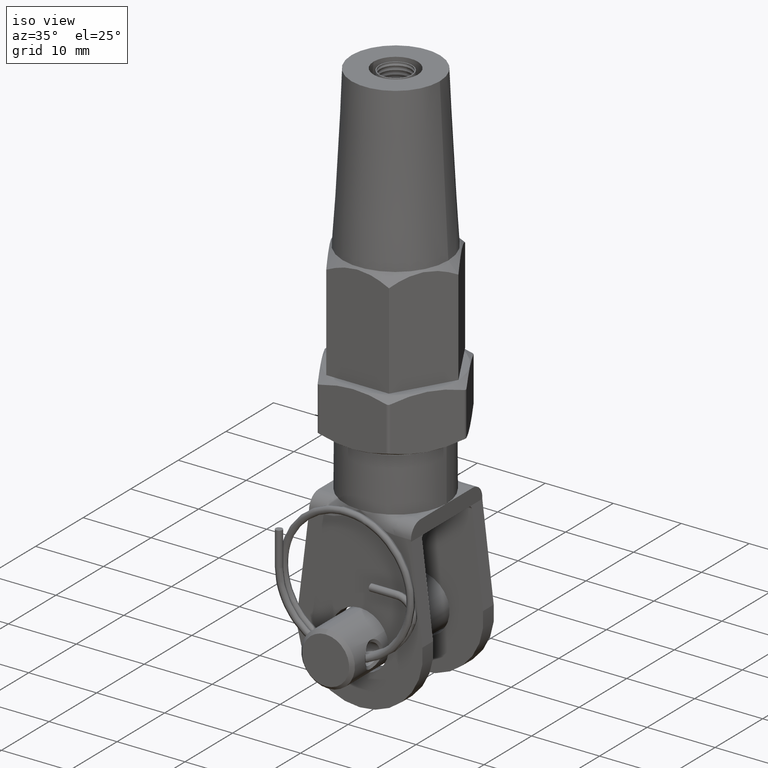
[diagram: clean part render]
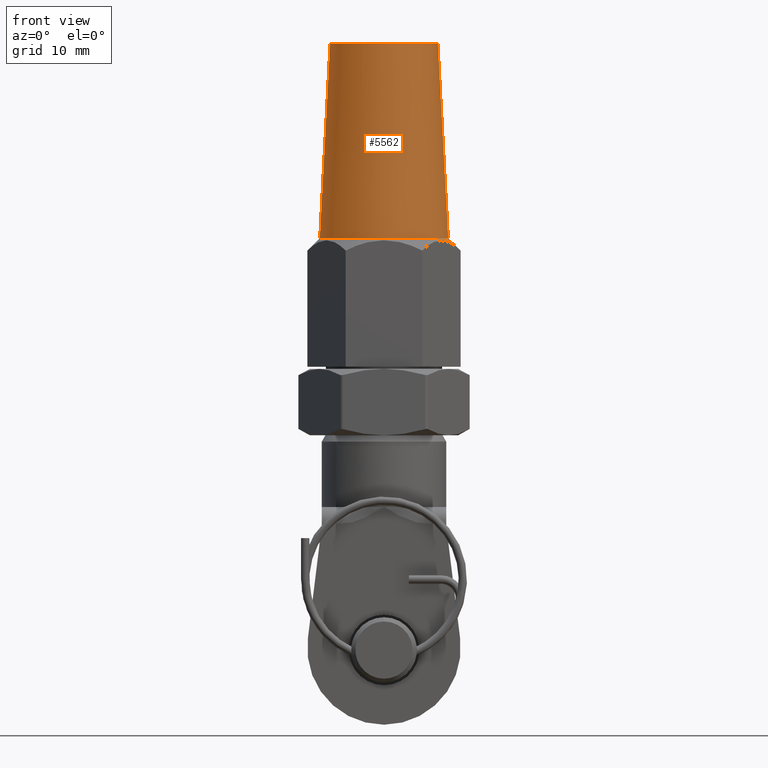
[diagram: tour spotlight — one face highlighted and labeled with its STEP entity id]
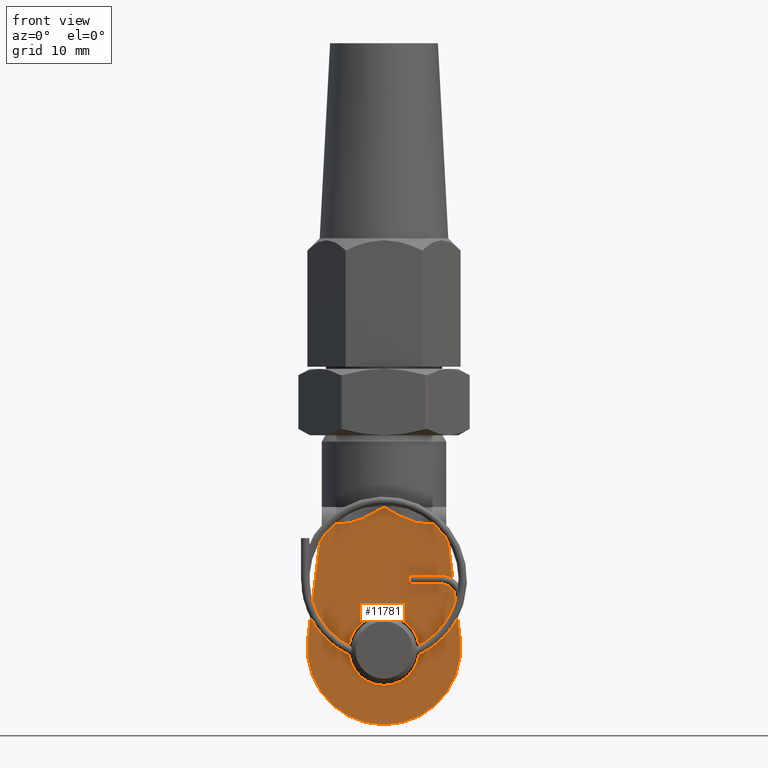
[diagram: tour spotlight — one face highlighted and labeled with its STEP entity id]
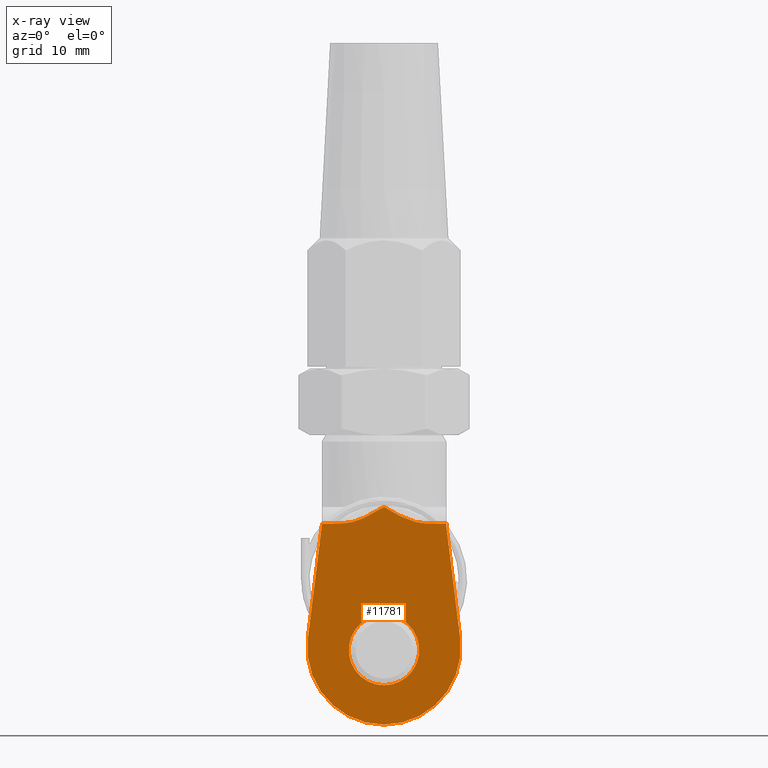
[diagram: x-ray of the same camera — body ghosted, this tour face saturated]
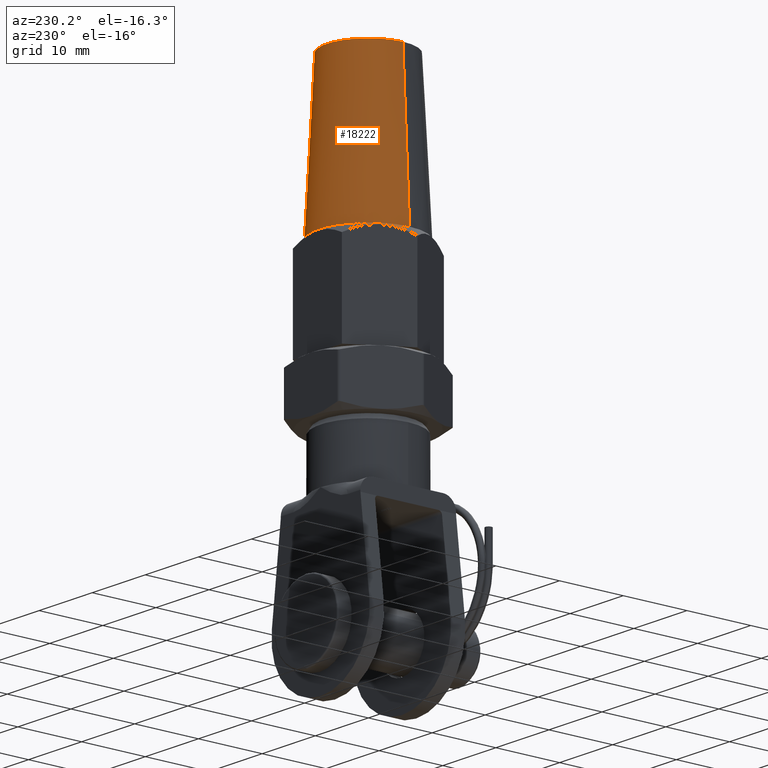
[diagram: tour spotlight — one face highlighted and labeled with its STEP entity id]
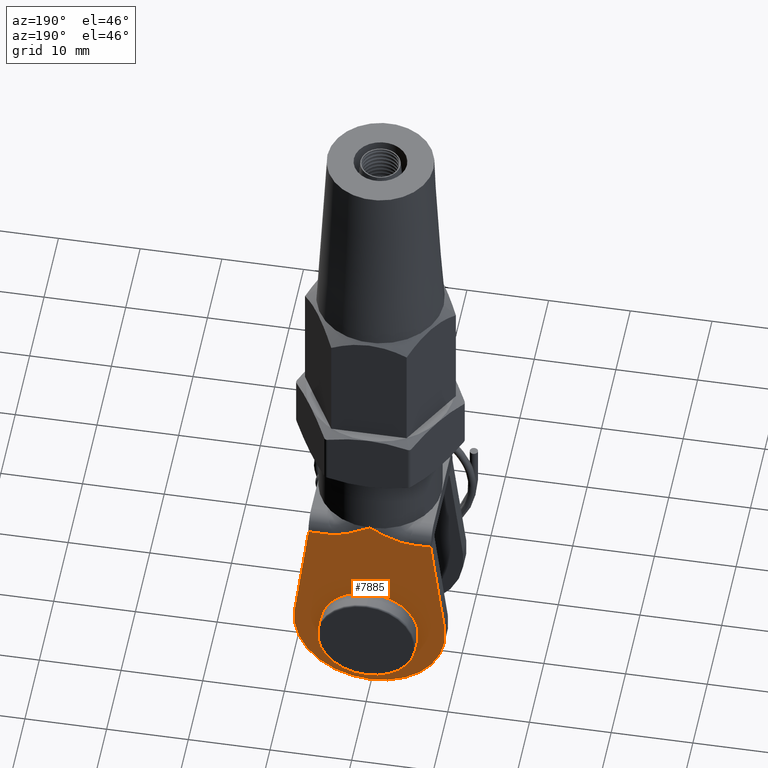
[diagram: tour spotlight — one face highlighted and labeled with its STEP entity id]
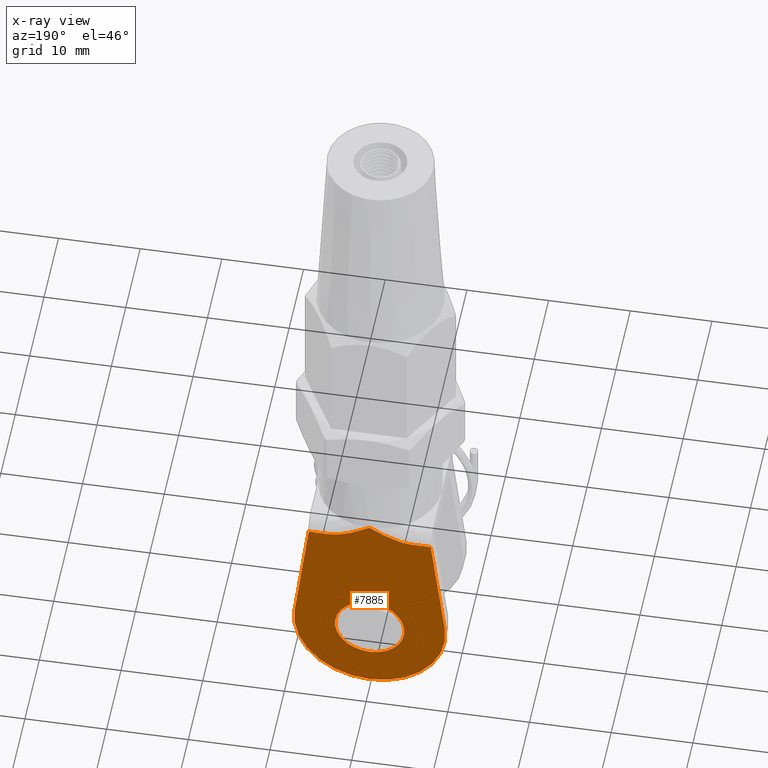
[diagram: x-ray of the same camera — body ghosted, this tour face saturated]
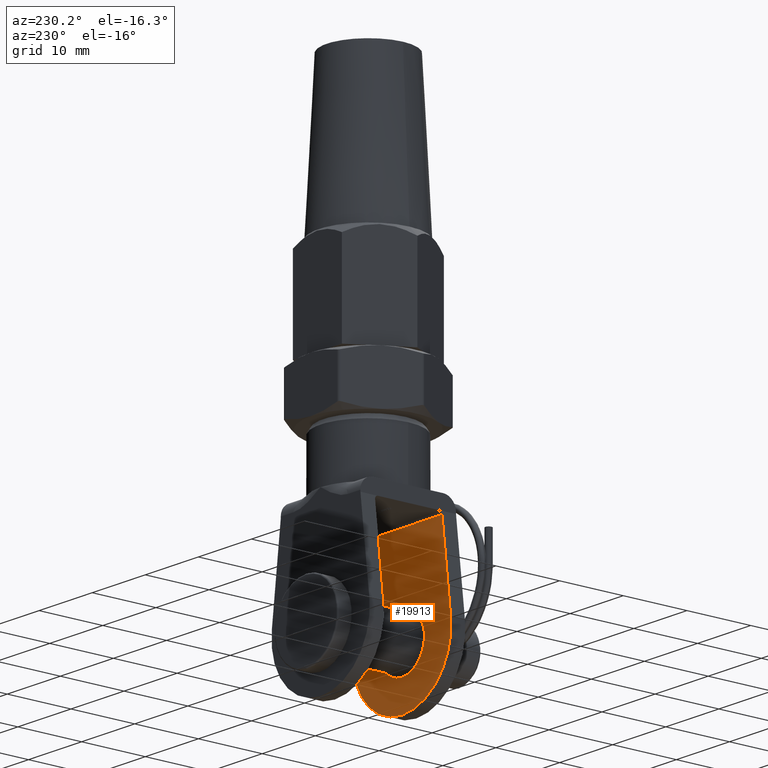
[diagram: tour spotlight — one face highlighted and labeled with its STEP entity id]
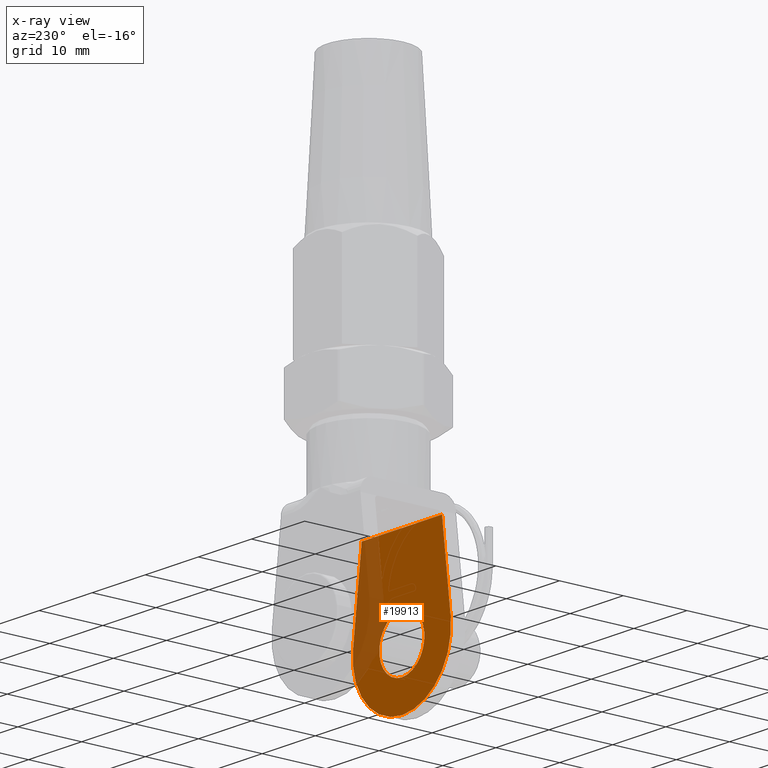
[diagram: x-ray of the same camera — body ghosted, this tour face saturated]
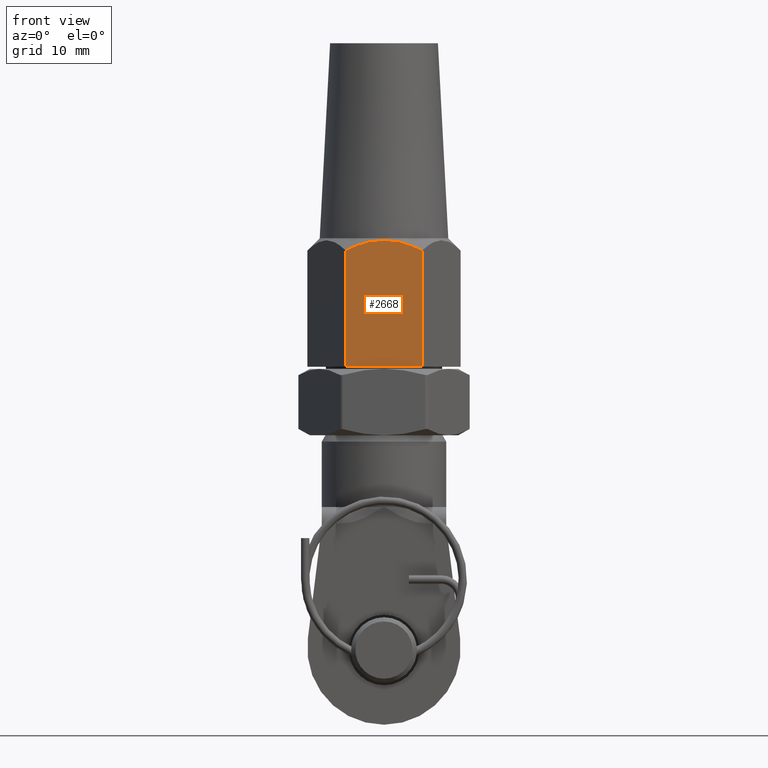
[diagram: tour spotlight — one face highlighted and labeled with its STEP entity id]
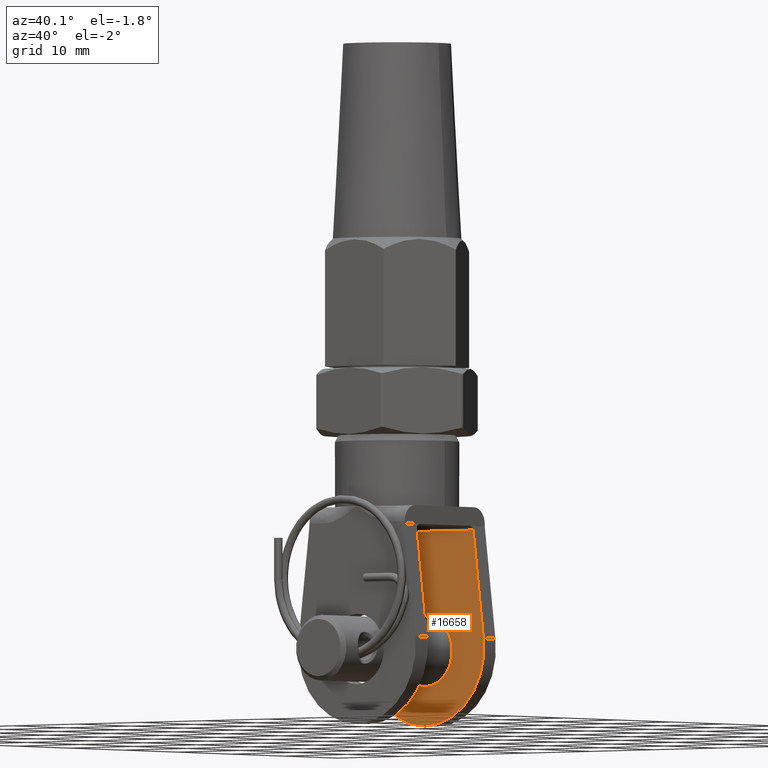
[diagram: tour spotlight — one face highlighted and labeled with its STEP entity id]
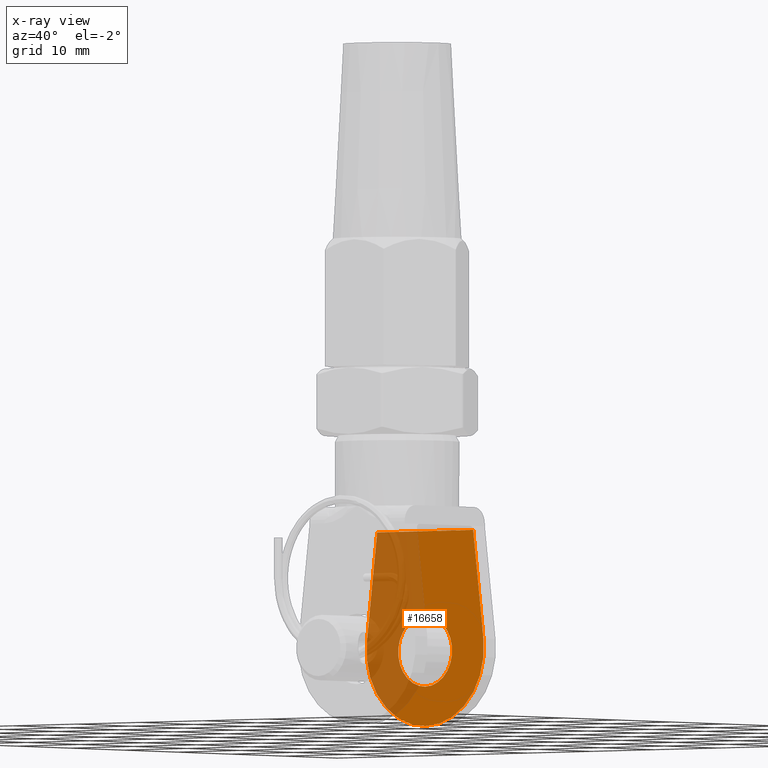
[diagram: x-ray of the same camera — body ghosted, this tour face saturated]
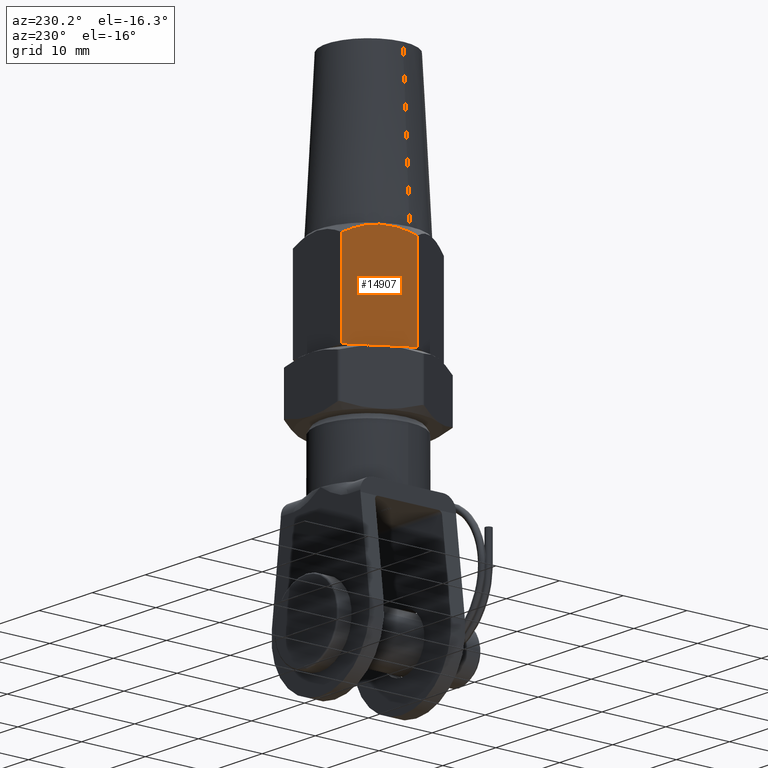
[diagram: tour spotlight — one face highlighted and labeled with its STEP entity id]
A machine part: a face-by-face anatomy tour. The part has 586 B-rep faces; the first image is the clean iso view, then the 8 largest visible faces are spotlighted one at a time (largest first), each with its STEP entity span.

Face 1 — front view, entity #5562. In plain terms, the highlighted conical surface has half-angle 3.045 deg.
Definition (entity closure, byte-faithful):
#176 = CARTESIAN_POINT ( 'NONE',  ( -6.499999999999997300, 0.0000000000000000000, 39.00000000000000000 ) ) ;
#677 = VERTEX_POINT ( 'NONE', #21033 ) ;
#2098 = VERTEX_POINT ( 'NONE', #2561 ) ;
#2561 = CARTESIAN_POINT ( 'NONE',  ( 7.750000000000000000, 9.491012693391987800E-016, 15.49999999999999800 ) ) ;
#3265 = DIRECTION ( 'NONE',  ( -1.198943578309657700E-016, -0.0000000000000000000, -1.000000000000000000 ) ) ;
#4141 = CARTESIAN_POINT ( 'NONE',  ( 3.029592588455082900E-015, 0.0000000000000000000, 39.00000000000000000 ) ) ;
#5562 = ADVANCED_FACE ( 'NONE', ( #15848 ), #20205, .T. ) ;
#6278 = EDGE_CURVE ( 'NONE', #21007, #677, #23113, .T. ) ;
#6662 = VERTEX_POINT ( 'NONE', #23503 ) ;
#7006 = VECTOR ( 'NONE', #13820, 1000.000000000000100 ) ;
#7266 = ORIENTED_EDGE ( 'NONE', *, *, #17715, .T. ) ;
#7704 = DIRECTION ( 'NONE',  ( -1.198943578309657700E-016, -0.0000000000000000000, -1.000000000000000000 ) ) ;
#7905 = VECTOR ( 'NONE', #23760, 1000.000000000000100 ) ;
#8465 = LINE ( 'NONE', #10753, #7905 ) ;
#9465 = CIRCLE ( 'NONE', #18059, 7.750000000000000000 ) ;
#9932 = LINE ( 'NONE', #21158, #7006 ) ;
#10356 = AXIS2_PLACEMENT_3D ( 'NONE', #23558, #3265, #18121 ) ;
#10753 = CARTESIAN_POINT ( 'NONE',  ( 6.500000000000002700, 7.960204194457795500E-016, 39.00000000000000000 ) ) ;
#11617 = DIRECTION ( 'NONE',  ( -1.000000000000000000, 0.0000000000000000000, 0.0000000000000000000 ) ) ;
#11656 = EDGE_CURVE ( 'NONE', #6662, #2098, #9465, .T. ) ;
#11938 = AXIS2_PLACEMENT_3D ( 'NONE', #4141, #7704, #20755 ) ;
#13382 = ORIENTED_EDGE ( 'NONE', *, *, #11656, .F. ) ;
#13820 = DIRECTION ( 'NONE',  ( -0.05311640040396675000, 0.0000000000000000000, -0.9985883275945725000 ) ) ;
#14009 = ORIENTED_EDGE ( 'NONE', *, *, #23080, .F. ) ;
#15848 = FACE_OUTER_BOUND ( 'NONE', #21659, .T. ) ;
#16174 = ORIENTED_EDGE ( 'NONE', *, *, #6278, .T. ) ;
#17715 = EDGE_CURVE ( 'NONE', #677, #2098, #8465, .T. ) ;
#18059 = AXIS2_PLACEMENT_3D ( 'NONE', #22750, #20956, #11617 ) ;
#18121 = DIRECTION ( 'NONE',  ( -1.000000000000000000, 0.0000000000000000000, 0.0000000000000000000 ) ) ;
#20205 = CONICAL_SURFACE ( 'NONE', #10356, 6.500000000000000000, 0.05314140884493547000 ) ;
#20755 = DIRECTION ( 'NONE',  ( -1.000000000000000000, 0.0000000000000000000, 0.0000000000000000000 ) ) ;
#20956 = DIRECTION ( 'NONE',  ( -1.368226964047662500E-017, -0.0000000000000000000, -1.000000000000000000 ) ) ;
#21007 = VERTEX_POINT ( 'NONE', #176 ) ;
#21033 = CARTESIAN_POINT ( 'NONE',  ( 6.500000000000002700, 8.725608443924891100E-016, 39.00000000000000000 ) ) ;
#21158 = CARTESIAN_POINT ( 'NONE',  ( -6.499999999999997300, 0.0000000000000000000, 39.00000000000000000 ) ) ;
#21659 = EDGE_LOOP ( 'NONE', ( #16174, #7266, #13382, #14009 ) ) ;
#22750 = CARTESIAN_POINT ( 'NONE',  ( 2.120751794273876500E-016, 0.0000000000000000000, 15.49999999999999800 ) ) ;
#23080 = EDGE_CURVE ( 'NONE', #21007, #6662, #9932, .T. ) ;
#23113 = CIRCLE ( 'NONE', #11938, 6.500000000000000000 ) ;
#23503 = CARTESIAN_POINT ( 'NONE',  ( -7.750000000000000000, 0.0000000000000000000, 15.49999999999999800 ) ) ;
#23558 = CARTESIAN_POINT ( 'NONE',  ( 3.029592588455082900E-015, 0.0000000000000000000, 39.00000000000000000 ) ) ;
#23760 = DIRECTION ( 'NONE',  ( 0.05311640040396651400, 6.504882973694691800E-018, -0.9985883275945725000 ) ) ;

Face 2 — front view, entity #11781. An x-ray twin of the same camera follows (body ghosted, this face saturated) — the face is partly hidden behind the body. In plain terms, the highlighted planar face has unit normal (0, 1, 0).
Definition (entity closure, byte-faithful):
#774 = FACE_BOUND ( 'NONE', #20301, .T. ) ;
#817 = CARTESIAN_POINT ( 'NONE',  ( -7.500000000000000000, -7.500000000000000000, -9.750000000000000000 ) ) ;
#1074 = DIRECTION ( 'NONE',  ( 0.0000000000000000000, 1.000000000000000000, 0.0000000000000000000 ) ) ;
#1180 = VERTEX_POINT ( 'NONE', #10117 ) ;
#1207 = CARTESIAN_POINT ( 'NONE',  ( 5.204748896376250700E-016, -7.500000000000000000, -29.24999999999999600 ) ) ;
#1218 = CARTESIAN_POINT ( 'NONE',  ( -5.099019513592784500, -7.500000000000000000, -9.750000000000000000 ) ) ;
#1485 = AXIS2_PLACEMENT_3D ( 'NONE', #21576, #1074, #12233 ) ;
#2441 = EDGE_CURVE ( 'NONE', #11786, #16048, #20532, .T. ) ;
#2500 = CARTESIAN_POINT ( 'NONE',  ( 1.594745099172391500, -7.500000000000000000, -8.680283323241806000 ) ) ;
#2799 = CARTESIAN_POINT ( 'NONE',  ( -2.844381765888483600, -7.499999999999998200, -9.273894721944795800 ) ) ;
#3709 = DIRECTION ( 'NONE',  ( -0.0000000000000000000, -0.0000000000000000000, -1.000000000000000000 ) ) ;
#3853 = VECTOR ( 'NONE', #11106, 1000.000000000000000 ) ;
#3920 = EDGE_CURVE ( 'NONE', #21123, #20054, #12341, .T. ) ;
#5035 = ORIENTED_EDGE ( 'NONE', *, *, #10462, .T. ) ;
#5616 = ORIENTED_EDGE ( 'NONE', *, *, #17139, .T. ) ;
#5957 = CARTESIAN_POINT ( 'NONE',  ( 7.500000000000000000, -7.500000000000000000, -10.00000000000000000 ) ) ;
#6095 = CARTESIAN_POINT ( 'NONE',  ( 7.500000000000000000, -7.500000000000000000, -10.00000000000000000 ) ) ;
#6129 = EDGE_CURVE ( 'NONE', #14237, #18928, #12056, .T. ) ;
#6187 = ORIENTED_EDGE ( 'NONE', *, *, #2441, .F. ) ;
#6474 = CARTESIAN_POINT ( 'NONE',  ( 4.173918547497717000, -7.499999999999999100, -9.676164368352271300 ) ) ;
#7403 = EDGE_CURVE ( 'NONE', #11936, #11786, #10001, .T. ) ;
#7478 = CARTESIAN_POINT ( 'NONE',  ( 5.099019513592782700, -7.500000000000000000, -9.750000000000000000 ) ) ;
#8190 = CARTESIAN_POINT ( 'NONE',  ( -9.180365859015916300, -7.500000000000000000, -23.61713518255046300 ) ) ;
#8229 = CARTESIAN_POINT ( 'NONE',  ( 4.631649060212265700, -7.500000000000003600, -9.750000000000001800 ) ) ;
#8270 = DIRECTION ( 'NONE',  ( 0.0000000000000000000, 0.0000000000000000000, -1.000000000000000000 ) ) ;
#8301 = CARTESIAN_POINT ( 'NONE',  ( 2.844460733677555800, -7.499999999999998200, -9.273925671865738400 ) ) ;
#10001 = LINE ( 'NONE', #16768, #23641 ) ;
#10031 = VECTOR ( 'NONE', #23133, 1000.000000000000200 ) ;
#10093 = CARTESIAN_POINT ( 'NONE',  ( -1.581589292000420000, -7.500000000000000900, -8.705437431023932900 ) ) ;
#10117 = CARTESIAN_POINT ( 'NONE',  ( 0.0000000000000000000, -7.500000000000000000, -7.750000000000000000 ) ) ;
#10155 = CARTESIAN_POINT ( 'NONE',  ( 0.0000000000000000000, -7.500000000000000000, -20.74999999999999300 ) ) ;
#10166 = CARTESIAN_POINT ( 'NONE',  ( -3.281924050339796000, -7.499999999999999100, -9.439279125100112500 ) ) ;
#10176 = CARTESIAN_POINT ( 'NONE',  ( 0.1000429423369448200, -7.499999999999998200, -7.810328013337763900 ) ) ;
#10462 = EDGE_CURVE ( 'NONE', #19238, #1180, #23952, .T. ) ;
#10573 = DIRECTION ( 'NONE',  ( -1.000000000000000000, 0.0000000000000000000, -0.0000000000000000000 ) ) ;
#10725 = ORIENTED_EDGE ( 'NONE', *, *, #15120, .T. ) ;
#11106 = DIRECTION ( 'NONE',  ( -0.0000000000000000000, -0.0000000000000000000, -1.000000000000000000 ) ) ;
#11411 = B_SPLINE_CURVE_WITH_KNOTS ( 'NONE', 3,
 ( #13885, #21295, #10093, #2799, #10166, #23165, #13727, #21519 ),
 .UNSPECIFIED., .F., .F.,
 ( 4, 2, 2, 4 ),
 ( -1.483239697502911500E-005, 0.002750793772105006300, 0.004133606856645022000, 0.005516419941185038600 ),
 .UNSPECIFIED. ) ;
#11675 = DIRECTION ( 'NONE',  ( 0.1224718721567065500, 0.0000000000000000000, -0.9924719847584773100 ) ) ;
#11699 = CIRCLE ( 'NONE', #1485, 4.250000000000000000 ) ;
#11781 = ADVANCED_FACE ( 'NONE', ( #774, #20180 ), #16986, .F. ) ;
#11786 = VERTEX_POINT ( 'NONE', #5957 ) ;
#11803 = ORIENTED_EDGE ( 'NONE', *, *, #21126, .T. ) ;
#11936 = VERTEX_POINT ( 'NONE', #19486 ) ;
#11968 = CARTESIAN_POINT ( 'NONE',  ( 0.7928025339162136900, -7.500000000000000000, -8.224167507945885800 ) ) ;
#12056 = CIRCLE ( 'NONE', #23018, 4.250000000000000000 ) ;
#12233 = DIRECTION ( 'NONE',  ( 0.0000000000000000000, 0.0000000000000000000, 1.000000000000000000 ) ) ;
#12341 = LINE ( 'NONE', #8190, #10031 ) ;
#12512 = CARTESIAN_POINT ( 'NONE',  ( 0.0000000000000000000, -7.500000000000000000, -9.750000000000000000 ) ) ;
#12638 = DIRECTION ( 'NONE',  ( 0.0000000000000000000, 0.0000000000000000000, 1.000000000000000000 ) ) ;
#12813 = VECTOR ( 'NONE', #10573, 1000.000000000000000 ) ;
#12826 = ORIENTED_EDGE ( 'NONE', *, *, #23521, .T. ) ;
#13265 = CARTESIAN_POINT ( 'NONE',  ( -9.180365859015916300, -7.500000000000000000, -23.61713518255046300 ) ) ;
#13312 = AXIS2_PLACEMENT_3D ( 'NONE', #23578, #23827, #23743 ) ;
#13388 = CARTESIAN_POINT ( 'NONE',  ( 1.925929944387235900E-031, -7.500000000000000000, -24.74999999999999300 ) ) ;
#13727 = CARTESIAN_POINT ( 'NONE',  ( -4.631631951802542200, -7.499999999999999100, -9.750000000000000000 ) ) ;
#13867 = DIRECTION ( 'NONE',  ( 0.0000000000000000000, 1.000000000000000000, 0.0000000000000000000 ) ) ;
#13885 = CARTESIAN_POINT ( 'NONE',  ( 0.0000000000000000000, -7.500000000000000000, -7.750000000000000000 ) ) ;
#14060 = CARTESIAN_POINT ( 'NONE',  ( -7.500000000000000000, -7.500000000000000000, -10.00000000000000000 ) ) ;
#14136 = VERTEX_POINT ( 'NONE', #817 ) ;
#14237 = VERTEX_POINT ( 'NONE', #1207 ) ;
#14749 = CARTESIAN_POINT ( 'NONE',  ( -7.500000000000000000, -7.500000000000000000, -7.750000000000000000 ) ) ;
#15120 = EDGE_CURVE ( 'NONE', #1180, #17581, #11411, .T. ) ;
#15378 = CARTESIAN_POINT ( 'NONE',  ( 0.0000000000000000000, -7.500000000000000000, -7.750000000000000000 ) ) ;
#15421 = EDGE_CURVE ( 'NONE', #18928, #14237, #11699, .T. ) ;
#15438 = LINE ( 'NONE', #12512, #12813 ) ;
#15459 = CARTESIAN_POINT ( 'NONE',  ( 0.1979252277346972800, -7.500000000000000000, -7.869353315289058200 ) ) ;
#15697 = CARTESIAN_POINT ( 'NONE',  ( 0.4949784082190743000, -7.500000000000000900, -8.047506053340539400 ) ) ;
#16048 = VERTEX_POINT ( 'NONE', #22124 ) ;
#16768 = CARTESIAN_POINT ( 'NONE',  ( 7.500000000000000000, -7.500000000000000000, -7.750000000000000000 ) ) ;
#16920 = LINE ( 'NONE', #14749, #3853 ) ;
#16986 = PLANE ( 'NONE',  #19617 ) ;
#17139 = EDGE_CURVE ( 'NONE', #14136, #20054, #16920, .T. ) ;
#17581 = VERTEX_POINT ( 'NONE', #1218 ) ;
#18607 = EDGE_LOOP ( 'NONE', ( #23655, #12826, #5035, #10725, #11803, #5616, #20415, #23057, #6187 ) ) ;
#18928 = VERTEX_POINT ( 'NONE', #10155 ) ;
#19201 = CARTESIAN_POINT ( 'NONE',  ( 2.002626043966609700, -7.499999999999999100, -8.894975475922905200 ) ) ;
#19238 = VERTEX_POINT ( 'NONE', #7478 ) ;
#19486 = CARTESIAN_POINT ( 'NONE',  ( 7.500000000000000000, -7.500000000000000000, -9.750000000000000000 ) ) ;
#19617 = AXIS2_PLACEMENT_3D ( 'NONE', #13388, #13867, #8270 ) ;
#19716 = LINE ( 'NONE', #22710, #20589 ) ;
#20031 = CARTESIAN_POINT ( 'NONE',  ( 0.0000000000000000000, -7.500000000000000000, -24.99999999999999300 ) ) ;
#20054 = VERTEX_POINT ( 'NONE', #14060 ) ;
#20180 = FACE_OUTER_BOUND ( 'NONE', #18607, .T. ) ;
#20301 = EDGE_LOOP ( 'NONE', ( #23513, #22684 ) ) ;
#20415 = ORIENTED_EDGE ( 'NONE', *, *, #3920, .F. ) ;
#20532 = LINE ( 'NONE', #6095, #23732 ) ;
#20589 = VECTOR ( 'NONE', #22630, 1000.000000000000000 ) ;
#21123 = VERTEX_POINT ( 'NONE', #13265 ) ;
#21126 = EDGE_CURVE ( 'NONE', #17581, #14136, #19716, .T. ) ;
#21230 = CARTESIAN_POINT ( 'NONE',  ( 3.281988646966437900, -7.499999999999999100, -9.439299869324139900 ) ) ;
#21295 = CARTESIAN_POINT ( 'NONE',  ( -0.7894474454385411700, -7.500000000000001800, -8.226053531667204800 ) ) ;
#21309 = CARTESIAN_POINT ( 'NONE',  ( 0.3958965343504308200, -7.500000000000000900, -7.988245890614972000 ) ) ;
#21448 = CIRCLE ( 'NONE', #13312, 9.250000000000001800 ) ;
#21519 = CARTESIAN_POINT ( 'NONE',  ( -5.099019513592784500, -7.500000000000000000, -9.750000000000000000 ) ) ;
#21576 = CARTESIAN_POINT ( 'NONE',  ( 0.0000000000000000000, -7.500000000000000000, -24.99999999999999300 ) ) ;
#21600 = EDGE_CURVE ( 'NONE', #16048, #21123, #21448, .T. ) ;
#21988 = DIRECTION ( 'NONE',  ( 0.0000000000000000000, 1.000000000000000000, 0.0000000000000000000 ) ) ;
#22124 = CARTESIAN_POINT ( 'NONE',  ( 9.180365859015916300, -7.500000000000000000, -23.61713518255046300 ) ) ;
#22630 = DIRECTION ( 'NONE',  ( -1.000000000000000000, 0.0000000000000000000, -0.0000000000000000000 ) ) ;
#22684 = ORIENTED_EDGE ( 'NONE', *, *, #6129, .T. ) ;
#22710 = CARTESIAN_POINT ( 'NONE',  ( -7.500000000000000000, -7.500000000000000000, -9.750000000000000000 ) ) ;
#22863 = CARTESIAN_POINT ( 'NONE',  ( 5.099019513592782700, -7.500000000000000000, -9.750000000000000000 ) ) ;
#23018 = AXIS2_PLACEMENT_3D ( 'NONE', #20031, #21988, #12638 ) ;
#23057 = ORIENTED_EDGE ( 'NONE', *, *, #21600, .F. ) ;
#23133 = DIRECTION ( 'NONE',  ( 0.1224718721567065500, 0.0000000000000000000, 0.9924719847584773100 ) ) ;
#23165 = CARTESIAN_POINT ( 'NONE',  ( -4.173885195120201200, -7.499999999999999100, -9.676159100449828200 ) ) ;
#23176 = CARTESIAN_POINT ( 'NONE',  ( 0.9921217126481075600, -7.499999999999999100, -8.340452817098990200 ) ) ;
#23513 = ORIENTED_EDGE ( 'NONE', *, *, #15421, .T. ) ;
#23521 = EDGE_CURVE ( 'NONE', #11936, #19238, #15438, .T. ) ;
#23578 = CARTESIAN_POINT ( 'NONE',  ( 1.925929944387235900E-031, -7.500000000000000000, -24.74999999999999300 ) ) ;
#23641 = VECTOR ( 'NONE', #3709, 1000.000000000000000 ) ;
#23655 = ORIENTED_EDGE ( 'NONE', *, *, #7403, .F. ) ;
#23732 = VECTOR ( 'NONE', #11675, 1000.000000000000200 ) ;
#23743 = DIRECTION ( 'NONE',  ( 0.0000000000000000000, 0.0000000000000000000, -1.000000000000000000 ) ) ;
#23827 = DIRECTION ( 'NONE',  ( -0.0000000000000000000, 1.000000000000000000, -0.0000000000000000000 ) ) ;
#23952 = B_SPLINE_CURVE_WITH_KNOTS ( 'NONE', 3,
 ( #22863, #8229, #6474, #21230, #8301, #19201, #2500, #23176, #11968, #15697, #21309, #15459, #10176, #15378 ),
 .UNSPECIFIED., .F., .F.,
 ( 4, 2, 2, 2, 2, 2, 4 ),
 ( 0.0000000000000000000, 0.001401898915285598300, 0.002803797830571195400, 0.004205696745856792200, 0.004906646203499591900, 0.005257120932320991800, 0.005607595661142390800 ),
 .UNSPECIFIED. ) ;

Face 3 — auxiliary view, entity #18222. In plain terms, the highlighted conical surface has half-angle 3.045 deg.
Definition (entity closure, byte-faithful):
#176 = CARTESIAN_POINT ( 'NONE',  ( -6.499999999999997300, 0.0000000000000000000, 39.00000000000000000 ) ) ;
#677 = VERTEX_POINT ( 'NONE', #21033 ) ;
#890 = DIRECTION ( 'NONE',  ( -1.198943578309657700E-016, -0.0000000000000000000, -1.000000000000000000 ) ) ;
#2098 = VERTEX_POINT ( 'NONE', #2561 ) ;
#2561 = CARTESIAN_POINT ( 'NONE',  ( 7.750000000000000000, 9.491012693391987800E-016, 15.49999999999999800 ) ) ;
#3320 = DIRECTION ( 'NONE',  ( -1.198943578309657700E-016, -0.0000000000000000000, -1.000000000000000000 ) ) ;
#4241 = EDGE_CURVE ( 'NONE', #2098, #6662, #6865, .T. ) ;
#4603 = EDGE_LOOP ( 'NONE', ( #9618, #10871, #12526, #5177 ) ) ;
#5177 = ORIENTED_EDGE ( 'NONE', *, *, #4241, .F. ) ;
#6662 = VERTEX_POINT ( 'NONE', #23503 ) ;
#6865 = CIRCLE ( 'NONE', #18909, 7.750000000000000000 ) ;
#7006 = VECTOR ( 'NONE', #13820, 1000.000000000000100 ) ;
#7905 = VECTOR ( 'NONE', #23760, 1000.000000000000100 ) ;
#8462 = CIRCLE ( 'NONE', #11814, 6.500000000000000000 ) ;
#8465 = LINE ( 'NONE', #10753, #7905 ) ;
#8917 = DIRECTION ( 'NONE',  ( -1.000000000000000000, 0.0000000000000000000, 0.0000000000000000000 ) ) ;
#9618 = ORIENTED_EDGE ( 'NONE', *, *, #17715, .F. ) ;
#9932 = LINE ( 'NONE', #21158, #7006 ) ;
#10753 = CARTESIAN_POINT ( 'NONE',  ( 6.500000000000002700, 7.960204194457795500E-016, 39.00000000000000000 ) ) ;
#10871 = ORIENTED_EDGE ( 'NONE', *, *, #23077, .T. ) ;
#11814 = AXIS2_PLACEMENT_3D ( 'NONE', #20999, #890, #22787 ) ;
#12126 = DIRECTION ( 'NONE',  ( -1.368226964047662500E-017, -0.0000000000000000000, -1.000000000000000000 ) ) ;
#12526 = ORIENTED_EDGE ( 'NONE', *, *, #23080, .T. ) ;
#13820 = DIRECTION ( 'NONE',  ( -0.05311640040396675000, 0.0000000000000000000, -0.9985883275945725000 ) ) ;
#16292 = CONICAL_SURFACE ( 'NONE', #20006, 6.500000000000000000, 0.05314140884493547000 ) ;
#16895 = FACE_OUTER_BOUND ( 'NONE', #4603, .T. ) ;
#17715 = EDGE_CURVE ( 'NONE', #677, #2098, #8465, .T. ) ;
#18222 = ADVANCED_FACE ( 'NONE', ( #16895 ), #16292, .T. ) ;
#18909 = AXIS2_PLACEMENT_3D ( 'NONE', #23333, #12126, #23405 ) ;
#20006 = AXIS2_PLACEMENT_3D ( 'NONE', #21829, #3320, #8917 ) ;
#20999 = CARTESIAN_POINT ( 'NONE',  ( 3.029592588455082900E-015, 0.0000000000000000000, 39.00000000000000000 ) ) ;
#21007 = VERTEX_POINT ( 'NONE', #176 ) ;
#21033 = CARTESIAN_POINT ( 'NONE',  ( 6.500000000000002700, 8.725608443924891100E-016, 39.00000000000000000 ) ) ;
#21158 = CARTESIAN_POINT ( 'NONE',  ( -6.499999999999997300, 0.0000000000000000000, 39.00000000000000000 ) ) ;
#21829 = CARTESIAN_POINT ( 'NONE',  ( 3.029592588455082900E-015, 0.0000000000000000000, 39.00000000000000000 ) ) ;
#22787 = DIRECTION ( 'NONE',  ( -1.000000000000000000, 0.0000000000000000000, 0.0000000000000000000 ) ) ;
#23077 = EDGE_CURVE ( 'NONE', #677, #21007, #8462, .T. ) ;
#23080 = EDGE_CURVE ( 'NONE', #21007, #6662, #9932, .T. ) ;
#23333 = CARTESIAN_POINT ( 'NONE',  ( 2.120751794273876500E-016, 0.0000000000000000000, 15.49999999999999800 ) ) ;
#23405 = DIRECTION ( 'NONE',  ( -1.000000000000000000, 0.0000000000000000000, 0.0000000000000000000 ) ) ;
#23503 = CARTESIAN_POINT ( 'NONE',  ( -7.750000000000000000, 0.0000000000000000000, 15.49999999999999800 ) ) ;
#23760 = DIRECTION ( 'NONE',  ( 0.05311640040396651400, 6.504882973694691800E-018, -0.9985883275945725000 ) ) ;

Face 4 — auxiliary view, entity #7885. An x-ray twin of the same camera follows (body ghosted, this face saturated) — the face is partly hidden behind the body. In plain terms, the highlighted planar face has unit normal (0, -1, 0).
Definition (entity closure, byte-faithful):
#85 = ORIENTED_EDGE ( 'NONE', *, *, #3328, .F. ) ;
#211 = DIRECTION ( 'NONE',  ( 0.0000000000000000000, -1.000000000000000000, 0.0000000000000000000 ) ) ;
#608 = DIRECTION ( 'NONE',  ( 0.0000000000000000000, 1.000000000000000000, 0.0000000000000000000 ) ) ;
#832 = VERTEX_POINT ( 'NONE', #7302 ) ;
#1129 = DIRECTION ( 'NONE',  ( -0.0000000000000000000, -0.0000000000000000000, -1.000000000000000000 ) ) ;
#1628 = EDGE_CURVE ( 'NONE', #14308, #15328, #17076, .T. ) ;
#1908 = EDGE_CURVE ( 'NONE', #20669, #20191, #8318, .T. ) ;
#2435 = CARTESIAN_POINT ( 'NONE',  ( -0.7928025339162146900, 7.500000000000000900, -8.224167507945885800 ) ) ;
#2472 = VECTOR ( 'NONE', #12699, 1000.000000000000000 ) ;
#2644 = CARTESIAN_POINT ( 'NONE',  ( 5.204748896376250700E-016, 7.500000000000000000, -29.24999999999999600 ) ) ;
#2712 = EDGE_LOOP ( 'NONE', ( #14281, #17993, #4265, #21546, #3267, #5326, #11188, #14435, #17341, #17238 ) ) ;
#2818 = CARTESIAN_POINT ( 'NONE',  ( 5.099019513592785400, 7.500000000000000000, -9.750000000000000000 ) ) ;
#3267 = ORIENTED_EDGE ( 'NONE', *, *, #23854, .T. ) ;
#3328 = EDGE_CURVE ( 'NONE', #23652, #15129, #7458, .T. ) ;
#3930 = PLANE ( 'NONE',  #13349 ) ;
#4265 = ORIENTED_EDGE ( 'NONE', *, *, #1628, .T. ) ;
#4289 = CARTESIAN_POINT ( 'NONE',  ( -3.281988646966439700, 7.500000000000000900, -9.439299869324143400 ) ) ;
#4466 = LINE ( 'NONE', #6763, #5908 ) ;
#4618 = VERTEX_POINT ( 'NONE', #12995 ) ;
#4803 = VERTEX_POINT ( 'NONE', #5024 ) ;
#4912 = CARTESIAN_POINT ( 'NONE',  ( 1.581589292000420900, 7.500000000000000900, -8.705437431023932900 ) ) ;
#5024 = CARTESIAN_POINT ( 'NONE',  ( 0.0000000000000000000, 7.500000000000000000, -7.750000000000000000 ) ) ;
#5050 = LINE ( 'NONE', #19930, #2472 ) ;
#5326 = ORIENTED_EDGE ( 'NONE', *, *, #19129, .T. ) ;
#5452 = VECTOR ( 'NONE', #19414, 1000.000000000000000 ) ;
#5615 = DIRECTION ( 'NONE',  ( 0.0000000000000000000, 0.0000000000000000000, -1.000000000000000000 ) ) ;
#5886 = AXIS2_PLACEMENT_3D ( 'NONE', #16716, #16801, #5615 ) ;
#5908 = VECTOR ( 'NONE', #21608, 1000.000000000000200 ) ;
#6251 = CARTESIAN_POINT ( 'NONE',  ( -0.1979252277346972300, 7.499999999999999100, -7.869353315289056500 ) ) ;
#6482 = CARTESIAN_POINT ( 'NONE',  ( 2.844381765888485300, 7.499999999999998200, -9.273894721944795800 ) ) ;
#6573 = CARTESIAN_POINT ( 'NONE',  ( 0.0000000000000000000, 7.500000000000000000, -9.750000000000000000 ) ) ;
#6763 = CARTESIAN_POINT ( 'NONE',  ( 7.500000000000000000, 7.500000000000000000, -10.00000000000000000 ) ) ;
#6936 = DIRECTION ( 'NONE',  ( 0.1224718721567065500, 0.0000000000000000000, 0.9924719847584773100 ) ) ;
#7091 = CARTESIAN_POINT ( 'NONE',  ( -7.500000000000000000, 7.500000000000000000, -10.00000000000000000 ) ) ;
#7302 = CARTESIAN_POINT ( 'NONE',  ( -7.500000000000000000, 7.500000000000000000, -9.750000000000000000 ) ) ;
#7368 = EDGE_CURVE ( 'NONE', #23211, #14308, #5050, .T. ) ;
#7458 = CIRCLE ( 'NONE', #20935, 4.250000000000000000 ) ;
#7640 = CARTESIAN_POINT ( 'NONE',  ( 0.0000000000000000000, 7.500000000000000000, -24.99999999999999300 ) ) ;
#7659 = DIRECTION ( 'NONE',  ( 0.0000000000000000000, -0.0000000000000000000, -1.000000000000000000 ) ) ;
#7885 = ADVANCED_FACE ( 'NONE', ( #20715, #15774 ), #3930, .F. ) ;
#7937 = CARTESIAN_POINT ( 'NONE',  ( -2.002626043966610600, 7.500000000000000000, -8.894975475922901600 ) ) ;
#8017 = CARTESIAN_POINT ( 'NONE',  ( -0.4949784082190749600, 7.500000000000000900, -8.047506053340535800 ) ) ;
#8060 = CIRCLE ( 'NONE', #12285, 4.250000000000000000 ) ;
#8148 = CARTESIAN_POINT ( 'NONE',  ( 0.0000000000000000000, 7.500000000000000000, -20.74999999999999300 ) ) ;
#8318 = LINE ( 'NONE', #21705, #17360 ) ;
#8377 = AXIS2_PLACEMENT_3D ( 'NONE', #12736, #23874, #10714 ) ;
#8724 = CIRCLE ( 'NONE', #5886, 9.250000000000001800 ) ;
#9436 = CARTESIAN_POINT ( 'NONE',  ( -5.099019513592783600, 7.500000000000000000, -9.750000000000000000 ) ) ;
#9892 = EDGE_CURVE ( 'NONE', #15129, #23652, #8060, .T. ) ;
#10336 = CARTESIAN_POINT ( 'NONE',  ( 5.099019513592785400, 7.500000000000000000, -9.750000000000000000 ) ) ;
#10409 = VERTEX_POINT ( 'NONE', #18961 ) ;
#10714 = DIRECTION ( 'NONE',  ( 0.0000000000000000000, 0.0000000000000000000, -1.000000000000000000 ) ) ;
#11188 = ORIENTED_EDGE ( 'NONE', *, *, #1908, .T. ) ;
#11560 = VERTEX_POINT ( 'NONE', #9436 ) ;
#12209 = CARTESIAN_POINT ( 'NONE',  ( 7.500000000000000000, 7.500000000000000000, -9.750000000000000000 ) ) ;
#12285 = AXIS2_PLACEMENT_3D ( 'NONE', #7640, #20611, #16973 ) ;
#12287 = CARTESIAN_POINT ( 'NONE',  ( -7.500000000000000000, 7.500000000000000000, -7.750000000000000000 ) ) ;
#12699 = DIRECTION ( 'NONE',  ( 1.000000000000000000, -0.0000000000000000000, -0.0000000000000000000 ) ) ;
#12736 = CARTESIAN_POINT ( 'NONE',  ( 1.925929944387235900E-031, 7.500000000000000000, -24.74999999999999300 ) ) ;
#12995 = CARTESIAN_POINT ( 'NONE',  ( 9.180365859015916300, 7.500000000000000000, -23.61713518255046300 ) ) ;
#13349 = AXIS2_PLACEMENT_3D ( 'NONE', #18773, #211, #7659 ) ;
#13458 = B_SPLINE_CURVE_WITH_KNOTS ( 'NONE', 3,
 ( #13589, #15550, #23035, #4289, #17352, #7937, #19134, #13505, #2435, #8017, #21004, #6251, #19214, #17439 ),
 .UNSPECIFIED., .F., .F.,
 ( 4, 2, 2, 2, 2, 2, 4 ),
 ( 0.0000000000000000000, 0.001401898915285597000, 0.002803797830571194100, 0.004205696745856792200, 0.004906646203499592800, 0.005257120932320992700, 0.005607595661142393400 ),
 .UNSPECIFIED. ) ;
#13505 = CARTESIAN_POINT ( 'NONE',  ( -0.9921217126481081100, 7.500000000000001800, -8.340452817098995600 ) ) ;
#13589 = CARTESIAN_POINT ( 'NONE',  ( -5.099019513592783600, 7.500000000000000000, -9.750000000000000000 ) ) ;
#13801 = CARTESIAN_POINT ( 'NONE',  ( -9.180365859015916300, 7.500000000000000000, -23.61713518255046300 ) ) ;
#14281 = ORIENTED_EDGE ( 'NONE', *, *, #21456, .T. ) ;
#14308 = VERTEX_POINT ( 'NONE', #12209 ) ;
#14435 = ORIENTED_EDGE ( 'NONE', *, *, #21403, .F. ) ;
#14520 = CARTESIAN_POINT ( 'NONE',  ( 7.500000000000000000, 7.500000000000000000, -10.00000000000000000 ) ) ;
#14593 = EDGE_CURVE ( 'NONE', #15328, #4618, #4466, .T. ) ;
#14813 = EDGE_LOOP ( 'NONE', ( #85, #20608 ) ) ;
#15129 = VERTEX_POINT ( 'NONE', #2644 ) ;
#15163 = DIRECTION ( 'NONE',  ( 0.0000000000000000000, 0.0000000000000000000, 1.000000000000000000 ) ) ;
#15328 = VERTEX_POINT ( 'NONE', #14520 ) ;
#15550 = CARTESIAN_POINT ( 'NONE',  ( -4.631649060212265700, 7.500000000000003600, -9.750000000000003600 ) ) ;
#15774 = FACE_OUTER_BOUND ( 'NONE', #2712, .T. ) ;
#16022 = CARTESIAN_POINT ( 'NONE',  ( 0.7894474454385411700, 7.500000000000001800, -8.226053531667204800 ) ) ;
#16716 = CARTESIAN_POINT ( 'NONE',  ( 1.925929944387235900E-031, 7.500000000000000000, -24.74999999999999300 ) ) ;
#16801 = DIRECTION ( 'NONE',  ( 0.0000000000000000000, 1.000000000000000000, -0.0000000000000000000 ) ) ;
#16973 = DIRECTION ( 'NONE',  ( 0.0000000000000000000, 0.0000000000000000000, 1.000000000000000000 ) ) ;
#17076 = LINE ( 'NONE', #22917, #5452 ) ;
#17238 = ORIENTED_EDGE ( 'NONE', *, *, #21300, .T. ) ;
#17341 = ORIENTED_EDGE ( 'NONE', *, *, #19412, .T. ) ;
#17352 = CARTESIAN_POINT ( 'NONE',  ( -2.844460733677557100, 7.500000000000001800, -9.273925671865743700 ) ) ;
#17360 = VECTOR ( 'NONE', #6936, 1000.000000000000200 ) ;
#17439 = CARTESIAN_POINT ( 'NONE',  ( 0.0000000000000000000, 7.500000000000000000, -7.750000000000000000 ) ) ;
#17459 = VECTOR ( 'NONE', #23276, 1000.000000000000000 ) ;
#17903 = CARTESIAN_POINT ( 'NONE',  ( 4.631631951802540400, 7.499999999999999100, -9.750000000000000000 ) ) ;
#17993 = ORIENTED_EDGE ( 'NONE', *, *, #7368, .T. ) ;
#18773 = CARTESIAN_POINT ( 'NONE',  ( 1.925929944387235900E-031, 7.500000000000000000, -24.74999999999999300 ) ) ;
#18961 = CARTESIAN_POINT ( 'NONE',  ( 1.925929944387235900E-031, 7.500000000000000000, -33.99999999999999300 ) ) ;
#19129 = EDGE_CURVE ( 'NONE', #10409, #20669, #8724, .T. ) ;
#19134 = CARTESIAN_POINT ( 'NONE',  ( -1.594745099172391900, 7.500000000000001800, -8.680283323241806000 ) ) ;
#19214 = CARTESIAN_POINT ( 'NONE',  ( -0.1000429423369448400, 7.499999999999997300, -7.810328013337762200 ) ) ;
#19412 = EDGE_CURVE ( 'NONE', #832, #11560, #20922, .T. ) ;
#19414 = DIRECTION ( 'NONE',  ( -0.0000000000000000000, -0.0000000000000000000, -1.000000000000000000 ) ) ;
#19525 = CARTESIAN_POINT ( 'NONE',  ( 3.281924050339796000, 7.499999999999999100, -9.439279125100112500 ) ) ;
#19930 = CARTESIAN_POINT ( 'NONE',  ( 7.500000000000000000, 7.500000000000000000, -9.750000000000000000 ) ) ;
#20191 = VERTEX_POINT ( 'NONE', #7091 ) ;
#20281 = LINE ( 'NONE', #12287, #24062 ) ;
#20608 = ORIENTED_EDGE ( 'NONE', *, *, #9892, .F. ) ;
#20611 = DIRECTION ( 'NONE',  ( 0.0000000000000000000, 1.000000000000000000, 0.0000000000000000000 ) ) ;
#20669 = VERTEX_POINT ( 'NONE', #13801 ) ;
#20715 = FACE_BOUND ( 'NONE', #14813, .T. ) ;
#20922 = LINE ( 'NONE', #6573, #17459 ) ;
#20935 = AXIS2_PLACEMENT_3D ( 'NONE', #22334, #608, #15163 ) ;
#20941 = CIRCLE ( 'NONE', #8377, 9.250000000000001800 ) ;
#21004 = CARTESIAN_POINT ( 'NONE',  ( -0.3958965343504308200, 7.500000000000000900, -7.988245890614972000 ) ) ;
#21072 = B_SPLINE_CURVE_WITH_KNOTS ( 'NONE', 3,
 ( #21545, #16022, #4912, #6482, #19525, #21625, #17903, #10336 ),
 .UNSPECIFIED., .F., .F.,
 ( 4, 2, 2, 4 ),
 ( -1.483239697502911500E-005, 0.002750793772105006700, 0.004133606856645022900, 0.005516419941185039500 ),
 .UNSPECIFIED. ) ;
#21300 = EDGE_CURVE ( 'NONE', #11560, #4803, #13458, .T. ) ;
#21403 = EDGE_CURVE ( 'NONE', #832, #20191, #20281, .T. ) ;
#21456 = EDGE_CURVE ( 'NONE', #4803, #23211, #21072, .T. ) ;
#21545 = CARTESIAN_POINT ( 'NONE',  ( 0.0000000000000000000, 7.500000000000000000, -7.750000000000000000 ) ) ;
#21546 = ORIENTED_EDGE ( 'NONE', *, *, #14593, .T. ) ;
#21608 = DIRECTION ( 'NONE',  ( 0.1224718721567065500, 0.0000000000000000000, -0.9924719847584773100 ) ) ;
#21625 = CARTESIAN_POINT ( 'NONE',  ( 4.173885195120200300, 7.499999999999999100, -9.676159100449828200 ) ) ;
#21705 = CARTESIAN_POINT ( 'NONE',  ( -9.180365859015916300, 7.500000000000000000, -23.61713518255046300 ) ) ;
#22334 = CARTESIAN_POINT ( 'NONE',  ( 0.0000000000000000000, 7.500000000000000000, -24.99999999999999300 ) ) ;
#22917 = CARTESIAN_POINT ( 'NONE',  ( 7.500000000000000000, 7.500000000000000000, -7.750000000000000000 ) ) ;
#23035 = CARTESIAN_POINT ( 'NONE',  ( -4.173918547497718700, 7.500000000000000900, -9.676164368352271300 ) ) ;
#23211 = VERTEX_POINT ( 'NONE', #2818 ) ;
#23276 = DIRECTION ( 'NONE',  ( 1.000000000000000000, -0.0000000000000000000, -0.0000000000000000000 ) ) ;
#23652 = VERTEX_POINT ( 'NONE', #8148 ) ;
#23854 = EDGE_CURVE ( 'NONE', #4618, #10409, #20941, .T. ) ;
#23874 = DIRECTION ( 'NONE',  ( 0.0000000000000000000, 1.000000000000000000, -0.0000000000000000000 ) ) ;
#24062 = VECTOR ( 'NONE', #1129, 1000.000000000000000 ) ;

Face 5 — auxiliary view, entity #19913. An x-ray twin of the same camera follows (body ghosted, this face saturated) — the face is partly hidden behind the body. In plain terms, the highlighted planar face has unit normal (0, 1, 0).
Definition (entity closure, byte-faithful):
#780 = AXIS2_PLACEMENT_3D ( 'NONE', #9781, #15364, #4263 ) ;
#854 = CARTESIAN_POINT ( 'NONE',  ( 1.925929944387235900E-031, -5.250000000000000000, -24.74999999999999300 ) ) ;
#1622 = ORIENTED_EDGE ( 'NONE', *, *, #5885, .T. ) ;
#2029 = AXIS2_PLACEMENT_3D ( 'NONE', #17349, #19209, #8090 ) ;
#2066 = FACE_BOUND ( 'NONE', #19363, .T. ) ;
#2655 = VECTOR ( 'NONE', #21103, 1000.000000000000200 ) ;
#3257 = DIRECTION ( 'NONE',  ( 0.1224718721567065500, 0.0000000000000000000, 0.9924719847584773100 ) ) ;
#3759 = CIRCLE ( 'NONE', #780, 4.250000000000000000 ) ;
#3839 = CARTESIAN_POINT ( 'NONE',  ( 7.561700417763686800, -5.250000000000000000, -10.50000000000000000 ) ) ;
#4263 = DIRECTION ( 'NONE',  ( 0.0000000000000000000, 0.0000000000000000000, 1.000000000000000000 ) ) ;
#4413 = CARTESIAN_POINT ( 'NONE',  ( 9.180365859015916300, -5.250000000000000000, -23.61713518255046300 ) ) ;
#4976 = CARTESIAN_POINT ( 'NONE',  ( 7.500000000000000000, -5.250000000000000000, -10.50000000000000000 ) ) ;
#5613 = CARTESIAN_POINT ( 'NONE',  ( 0.0000000000000000000, -5.250000000000000000, -20.74999999999999300 ) ) ;
#5636 = VERTEX_POINT ( 'NONE', #16653 ) ;
#5780 = VERTEX_POINT ( 'NONE', #3839 ) ;
#5885 = EDGE_CURVE ( 'NONE', #8055, #12855, #9742, .T. ) ;
#6296 = EDGE_LOOP ( 'NONE', ( #19955, #21524, #21844, #1622 ) ) ;
#7277 = DIRECTION ( 'NONE',  ( 0.0000000000000000000, 0.0000000000000000000, 1.000000000000000000 ) ) ;
#7655 = LINE ( 'NONE', #4976, #19541 ) ;
#8055 = VERTEX_POINT ( 'NONE', #4413 ) ;
#8090 = DIRECTION ( 'NONE',  ( 0.0000000000000000000, 0.0000000000000000000, -1.000000000000000000 ) ) ;
#8915 = AXIS2_PLACEMENT_3D ( 'NONE', #15871, #23588, #7277 ) ;
#9306 = VERTEX_POINT ( 'NONE', #5613 ) ;
#9742 = CIRCLE ( 'NONE', #11618, 9.250000000000001800 ) ;
#9781 = CARTESIAN_POINT ( 'NONE',  ( 0.0000000000000000000, -5.250000000000000000, -24.99999999999999300 ) ) ;
#9997 = DIRECTION ( 'NONE',  ( -0.0000000000000000000, 1.000000000000000000, -0.0000000000000000000 ) ) ;
#11618 = AXIS2_PLACEMENT_3D ( 'NONE', #854, #9997, #17228 ) ;
#12127 = CARTESIAN_POINT ( 'NONE',  ( 5.204748896376250700E-016, -5.250000000000000000, -29.24999999999999600 ) ) ;
#12187 = ORIENTED_EDGE ( 'NONE', *, *, #15700, .F. ) ;
#12733 = ORIENTED_EDGE ( 'NONE', *, *, #20687, .F. ) ;
#12855 = VERTEX_POINT ( 'NONE', #19657 ) ;
#13369 = CARTESIAN_POINT ( 'NONE',  ( 7.500000000000000000, -5.250000000000000000, -10.00000000000000000 ) ) ;
#15264 = EDGE_CURVE ( 'NONE', #12855, #5636, #17531, .T. ) ;
#15364 = DIRECTION ( 'NONE',  ( 0.0000000000000000000, 1.000000000000000000, 0.0000000000000000000 ) ) ;
#15700 = EDGE_CURVE ( 'NONE', #23149, #9306, #18989, .T. ) ;
#15871 = CARTESIAN_POINT ( 'NONE',  ( 0.0000000000000000000, -5.250000000000000000, -24.99999999999999300 ) ) ;
#15994 = CARTESIAN_POINT ( 'NONE',  ( -9.180365859015916300, -5.250000000000000000, -23.61713518255046300 ) ) ;
#16410 = EDGE_CURVE ( 'NONE', #5636, #5780, #7655, .T. ) ;
#16653 = CARTESIAN_POINT ( 'NONE',  ( -7.561700417763686800, -5.250000000000000000, -10.50000000000000200 ) ) ;
#17228 = DIRECTION ( 'NONE',  ( 0.0000000000000000000, 0.0000000000000000000, -1.000000000000000000 ) ) ;
#17349 = CARTESIAN_POINT ( 'NONE',  ( 1.925929944387235900E-031, -5.250000000000000000, -24.74999999999999300 ) ) ;
#17531 = LINE ( 'NONE', #15994, #21866 ) ;
#18044 = DIRECTION ( 'NONE',  ( 1.000000000000000000, -0.0000000000000000000, 0.0000000000000000000 ) ) ;
#18989 = CIRCLE ( 'NONE', #8915, 4.250000000000000000 ) ;
#19130 = PLANE ( 'NONE',  #2029 ) ;
#19209 = DIRECTION ( 'NONE',  ( 0.0000000000000000000, 1.000000000000000000, 0.0000000000000000000 ) ) ;
#19338 = EDGE_CURVE ( 'NONE', #5780, #8055, #21486, .T. ) ;
#19363 = EDGE_LOOP ( 'NONE', ( #12733, #12187 ) ) ;
#19541 = VECTOR ( 'NONE', #18044, 1000.000000000000000 ) ;
#19657 = CARTESIAN_POINT ( 'NONE',  ( -9.180365859015916300, -5.250000000000000000, -23.61713518255046300 ) ) ;
#19913 = ADVANCED_FACE ( 'NONE', ( #2066, #20612 ), #19130, .T. ) ;
#19955 = ORIENTED_EDGE ( 'NONE', *, *, #15264, .T. ) ;
#20612 = FACE_OUTER_BOUND ( 'NONE', #6296, .T. ) ;
#20687 = EDGE_CURVE ( 'NONE', #9306, #23149, #3759, .T. ) ;
#21103 = DIRECTION ( 'NONE',  ( 0.1224718721567065500, 0.0000000000000000000, -0.9924719847584773100 ) ) ;
#21486 = LINE ( 'NONE', #13369, #2655 ) ;
#21524 = ORIENTED_EDGE ( 'NONE', *, *, #16410, .T. ) ;
#21844 = ORIENTED_EDGE ( 'NONE', *, *, #19338, .T. ) ;
#21866 = VECTOR ( 'NONE', #3257, 1000.000000000000200 ) ;
#23149 = VERTEX_POINT ( 'NONE', #12127 ) ;
#23588 = DIRECTION ( 'NONE',  ( 0.0000000000000000000, 1.000000000000000000, 0.0000000000000000000 ) ) ;

Face 6 — front view, entity #2668. In plain terms, the highlighted planar face has unit normal (-0, 1, 0).
Definition (entity closure, byte-faithful):
#169 = LINE ( 'NONE', #16461, #11852 ) ;
#265 = CARTESIAN_POINT ( 'NONE',  ( 4.618802153517002300, 8.000000000000000000, 0.0000000000000000000 ) ) ;
#1408 = EDGE_CURVE ( 'NONE', #4898, #11591, #21672, .T. ) ;
#2008 = LINE ( 'NONE', #14904, #18266 ) ;
#2668 = ADVANCED_FACE ( 'NONE', ( #8596 ), #16426, .F. ) ;
#2752 = ORIENTED_EDGE ( 'NONE', *, *, #1408, .F. ) ;
#2829 = CARTESIAN_POINT ( 'NONE',  ( 3.150006993079935000, 8.000000000000000000, 14.65897714454855600 ) ) ;
#2982 = CARTESIAN_POINT ( 'NONE',  ( -0.1992170192775376800, 8.000000000000000000, 15.25008463695903800 ) ) ;
#3290 = CARTESIAN_POINT ( 'NONE',  ( 4.618802153517002300, 8.000000000000000000, 15.50000000000000000 ) ) ;
#3729 = LINE ( 'NONE', #11538, #8953 ) ;
#3851 = ORIENTED_EDGE ( 'NONE', *, *, #22509, .T. ) ;
#4684 = CARTESIAN_POINT ( 'NONE',  ( 4.261393135430398400, 8.000000000000000000, 14.19110020200930800 ) ) ;
#4763 = CARTESIAN_POINT ( 'NONE',  ( -3.901907008223546300, 8.000000000000001800, 14.37084326561273300 ) ) ;
#4898 = VERTEX_POINT ( 'NONE', #16124 ) ;
#5079 = DIRECTION ( 'NONE',  ( 1.877893248421449800E-016, -1.000000000000000000, 0.0000000000000000000 ) ) ;
#6504 = ORIENTED_EDGE ( 'NONE', *, *, #8297, .F. ) ;
#6632 = CARTESIAN_POINT ( 'NONE',  ( -4.618802153517006700, 7.999999999999998200, 14.01239569296600300 ) ) ;
#7341 = CARTESIAN_POINT ( 'NONE',  ( -4.618802153517006700, 7.999999999999998200, 0.0000000000000000000 ) ) ;
#7967 = DIRECTION ( 'NONE',  ( -1.000000000000000000, -1.877893248421449800E-016, 0.0000000000000000000 ) ) ;
#8297 = EDGE_CURVE ( 'NONE', #11591, #16638, #169, .T. ) ;
#8316 = CARTESIAN_POINT ( 'NONE',  ( -1.992580600150519100, 8.000000000000001800, 15.01384934340876300 ) ) ;
#8398 = CARTESIAN_POINT ( 'NONE',  ( -0.8070621912752542500, 7.999999999999998200, 15.21191026365274000 ) ) ;
#8596 = FACE_OUTER_BOUND ( 'NONE', #23483, .T. ) ;
#8635 = CARTESIAN_POINT ( 'NONE',  ( -1.407051687259963000, 7.999999999999998200, 15.14393158571326300 ) ) ;
#8953 = VECTOR ( 'NONE', #7967, 1000.000000000000000 ) ;
#11538 = CARTESIAN_POINT ( 'NONE',  ( 4.618802153517002300, 8.000000000000000000, 0.0000000000000000000 ) ) ;
#11591 = VERTEX_POINT ( 'NONE', #14440 ) ;
#11852 = VECTOR ( 'NONE', #12721, 1000.000000000000000 ) ;
#12057 = CARTESIAN_POINT ( 'NONE',  ( 3.897114081797245200, 8.000000000000000000, 14.35783334541131900 ) ) ;
#12721 = DIRECTION ( 'NONE',  ( -0.0000000000000000000, -0.0000000000000000000, -1.000000000000000000 ) ) ;
#13122 = DIRECTION ( 'NONE',  ( -0.0000000000000000000, -0.0000000000000000000, -1.000000000000000000 ) ) ;
#13817 = ORIENTED_EDGE ( 'NONE', *, *, #22326, .T. ) ;
#14440 = CARTESIAN_POINT ( 'NONE',  ( -4.618802153517006700, 7.999999999999998200, 14.01239569296600300 ) ) ;
#14904 = CARTESIAN_POINT ( 'NONE',  ( 4.618802153517002300, 8.000000000000000000, 15.50000000000000000 ) ) ;
#15941 = CARTESIAN_POINT ( 'NONE',  ( 0.8137194574464193800, 8.000000000000000000, 15.24965790255126700 ) ) ;
#16124 = CARTESIAN_POINT ( 'NONE',  ( 4.618802153517002300, 8.000000000000000000, 14.01239569296600400 ) ) ;
#16426 = PLANE ( 'NONE',  #19232 ) ;
#16461 = CARTESIAN_POINT ( 'NONE',  ( -4.618802153517006700, 7.999999999999998200, 15.50000000000000000 ) ) ;
#16638 = VERTEX_POINT ( 'NONE', #7341 ) ;
#18266 = VECTOR ( 'NONE', #13122, 1000.000000000000000 ) ;
#18291 = VERTEX_POINT ( 'NONE', #265 ) ;
#19232 = AXIS2_PLACEMENT_3D ( 'NONE', #3290, #5079, #23752 ) ;
#19454 = CARTESIAN_POINT ( 'NONE',  ( 4.618802153517002300, 8.000000000000000000, 14.01239569296600400 ) ) ;
#19530 = CARTESIAN_POINT ( 'NONE',  ( 2.765096951514606400, 8.000000000000000000, 14.79375686713653000 ) ) ;
#19755 = CARTESIAN_POINT ( 'NONE',  ( 1.603663895284762200, 8.000000000000001800, 15.12467631584186000 ) ) ;
#21470 = CARTESIAN_POINT ( 'NONE',  ( -0.4036049393148767900, 7.999999999999998200, 15.24235152020117000 ) ) ;
#21549 = CARTESIAN_POINT ( 'NONE',  ( -3.147599742753600900, 7.999999999999998200, 14.68480386094566700 ) ) ;
#21672 = B_SPLINE_CURVE_WITH_KNOTS ( 'NONE', 3,
 ( #19454, #4684, #12057, #2829, #19530, #19755, #15941, #2982, #21470, #8398, #8635, #8316, #21549, #4763, #6632 ),
 .UNSPECIFIED., .F., .F.,
 ( 4, 2, 2, 2, 2, 1, 2, 4 ),
 ( 0.004841677880556899100, 0.006038494063997982400, 0.007235310247439065800, 0.009628942614321230700, 0.01022735070604177300, 0.01082575879776231600, 0.01202257498120339700, 0.01441620734808556600 ),
 .UNSPECIFIED. ) ;
#22326 = EDGE_CURVE ( 'NONE', #18291, #16638, #3729, .T. ) ;
#22509 = EDGE_CURVE ( 'NONE', #4898, #18291, #2008, .T. ) ;
#23483 = EDGE_LOOP ( 'NONE', ( #2752, #3851, #13817, #6504 ) ) ;
#23752 = DIRECTION ( 'NONE',  ( 1.000000000000000000, 1.877893248421449800E-016, 0.0000000000000000000 ) ) ;

Face 7 — auxiliary view, entity #16658. An x-ray twin of the same camera follows (body ghosted, this face saturated) — the face is partly hidden behind the body. In plain terms, the highlighted planar face has unit normal (0, -1, 0).
Definition (entity closure, byte-faithful):
#6 = CARTESIAN_POINT ( 'NONE',  ( 1.925929944387235900E-031, 5.250000000000000000, -24.74999999999999300 ) ) ;
#258 = DIRECTION ( 'NONE',  ( 0.0000000000000000000, 1.000000000000000000, -0.0000000000000000000 ) ) ;
#310 = AXIS2_PLACEMENT_3D ( 'NONE', #22232, #7225, #22394 ) ;
#989 = EDGE_CURVE ( 'NONE', #18815, #22777, #16790, .T. ) ;
#1019 = EDGE_CURVE ( 'NONE', #15755, #13566, #17379, .T. ) ;
#1200 = ORIENTED_EDGE ( 'NONE', *, *, #1019, .F. ) ;
#1635 = CIRCLE ( 'NONE', #310, 9.250000000000001800 ) ;
#1970 = DIRECTION ( 'NONE',  ( 0.0000000000000000000, 0.0000000000000000000, -1.000000000000000000 ) ) ;
#2002 = PLANE ( 'NONE',  #12354 ) ;
#2161 = CARTESIAN_POINT ( 'NONE',  ( 5.204748896376250700E-016, 5.250000000000000900, -29.24999999999999600 ) ) ;
#3280 = FACE_OUTER_BOUND ( 'NONE', #10617, .T. ) ;
#3737 = EDGE_CURVE ( 'NONE', #22777, #21999, #5995, .T. ) ;
#3959 = AXIS2_PLACEMENT_3D ( 'NONE', #23208, #19862, #14578 ) ;
#4917 = CARTESIAN_POINT ( 'NONE',  ( -9.180365859015916300, 5.250000000000000000, -23.61713518255046300 ) ) ;
#5011 = CARTESIAN_POINT ( 'NONE',  ( 7.500000000000000000, 5.250000000000000000, -10.00000000000000000 ) ) ;
#5995 = LINE ( 'NONE', #7936, #18469 ) ;
#6175 = EDGE_CURVE ( 'NONE', #8502, #18815, #1635, .T. ) ;
#6358 = DIRECTION ( 'NONE',  ( -1.000000000000000000, -0.0000000000000000000, -0.0000000000000000000 ) ) ;
#7225 = DIRECTION ( 'NONE',  ( 0.0000000000000000000, 1.000000000000000000, -0.0000000000000000000 ) ) ;
#7282 = LINE ( 'NONE', #5011, #15962 ) ;
#7499 = DIRECTION ( 'NONE',  ( 0.0000000000000000000, -1.000000000000000000, 0.0000000000000000000 ) ) ;
#7936 = CARTESIAN_POINT ( 'NONE',  ( -9.180365859015916300, 5.250000000000000000, -23.61713518255046300 ) ) ;
#8035 = AXIS2_PLACEMENT_3D ( 'NONE', #11339, #16786, #22311 ) ;
#8143 = ORIENTED_EDGE ( 'NONE', *, *, #989, .F. ) ;
#8502 = VERTEX_POINT ( 'NONE', #20275 ) ;
#8798 = AXIS2_PLACEMENT_3D ( 'NONE', #6, #258, #1970 ) ;
#9380 = ORIENTED_EDGE ( 'NONE', *, *, #9641, .T. ) ;
#9641 = EDGE_CURVE ( 'NONE', #11166, #21999, #10082, .T. ) ;
#10082 = LINE ( 'NONE', #11250, #22568 ) ;
#10221 = ORIENTED_EDGE ( 'NONE', *, *, #15523, .F. ) ;
#10617 = EDGE_LOOP ( 'NONE', ( #21413, #9380, #14539, #8143, #15431 ) ) ;
#11048 = CARTESIAN_POINT ( 'NONE',  ( 1.925929944387235900E-031, 5.250000000000000000, -24.74999999999999300 ) ) ;
#11166 = VERTEX_POINT ( 'NONE', #15033 ) ;
#11250 = CARTESIAN_POINT ( 'NONE',  ( -7.500000000000000000, 5.250000000000000000, -10.50000000000000000 ) ) ;
#11339 = CARTESIAN_POINT ( 'NONE',  ( 0.0000000000000000000, 5.250000000000000900, -24.99999999999999300 ) ) ;
#12354 = AXIS2_PLACEMENT_3D ( 'NONE', #11048, #7499, #22185 ) ;
#12608 = CARTESIAN_POINT ( 'NONE',  ( 0.0000000000000000000, 5.250000000000000900, -20.74999999999999300 ) ) ;
#13566 = VERTEX_POINT ( 'NONE', #2161 ) ;
#14539 = ORIENTED_EDGE ( 'NONE', *, *, #3737, .F. ) ;
#14578 = DIRECTION ( 'NONE',  ( 0.0000000000000000000, 0.0000000000000000000, -1.000000000000000000 ) ) ;
#15033 = CARTESIAN_POINT ( 'NONE',  ( 7.561700417763686800, 5.250000000000000000, -10.50000000000000000 ) ) ;
#15431 = ORIENTED_EDGE ( 'NONE', *, *, #6175, .F. ) ;
#15523 = EDGE_CURVE ( 'NONE', #13566, #15755, #19828, .T. ) ;
#15755 = VERTEX_POINT ( 'NONE', #12608 ) ;
#15962 = VECTOR ( 'NONE', #17997, 1000.000000000000200 ) ;
#16081 = CARTESIAN_POINT ( 'NONE',  ( -7.561700417763686800, 5.250000000000000000, -10.50000000000000200 ) ) ;
#16658 = ADVANCED_FACE ( 'NONE', ( #17802, #3280 ), #2002, .T. ) ;
#16786 = DIRECTION ( 'NONE',  ( -0.0000000000000000000, -1.000000000000000000, 0.0000000000000000000 ) ) ;
#16790 = CIRCLE ( 'NONE', #8798, 9.250000000000001800 ) ;
#17379 = CIRCLE ( 'NONE', #8035, 4.250000000000000000 ) ;
#17802 = FACE_BOUND ( 'NONE', #21010, .T. ) ;
#17997 = DIRECTION ( 'NONE',  ( 0.1224718721567065500, 0.0000000000000000000, -0.9924719847584773100 ) ) ;
#18469 = VECTOR ( 'NONE', #23034, 1000.000000000000200 ) ;
#18815 = VERTEX_POINT ( 'NONE', #20796 ) ;
#19613 = EDGE_CURVE ( 'NONE', #11166, #8502, #7282, .T. ) ;
#19828 = CIRCLE ( 'NONE', #3959, 4.250000000000000000 ) ;
#19862 = DIRECTION ( 'NONE',  ( -0.0000000000000000000, -1.000000000000000000, 0.0000000000000000000 ) ) ;
#20275 = CARTESIAN_POINT ( 'NONE',  ( 9.180365859015916300, 5.250000000000000000, -23.61713518255046300 ) ) ;
#20796 = CARTESIAN_POINT ( 'NONE',  ( 1.925929944387235900E-031, 5.250000000000000000, -33.99999999999999300 ) ) ;
#21010 = EDGE_LOOP ( 'NONE', ( #1200, #10221 ) ) ;
#21413 = ORIENTED_EDGE ( 'NONE', *, *, #19613, .F. ) ;
#21999 = VERTEX_POINT ( 'NONE', #16081 ) ;
#22185 = DIRECTION ( 'NONE',  ( 0.0000000000000000000, -0.0000000000000000000, -1.000000000000000000 ) ) ;
#22232 = CARTESIAN_POINT ( 'NONE',  ( 1.925929944387235900E-031, 5.250000000000000000, -24.74999999999999300 ) ) ;
#22311 = DIRECTION ( 'NONE',  ( 0.0000000000000000000, 0.0000000000000000000, -1.000000000000000000 ) ) ;
#22394 = DIRECTION ( 'NONE',  ( 0.0000000000000000000, 0.0000000000000000000, -1.000000000000000000 ) ) ;
#22568 = VECTOR ( 'NONE', #6358, 1000.000000000000000 ) ;
#22777 = VERTEX_POINT ( 'NONE', #4917 ) ;
#23034 = DIRECTION ( 'NONE',  ( 0.1224718721567065500, 0.0000000000000000000, 0.9924719847584773100 ) ) ;
#23208 = CARTESIAN_POINT ( 'NONE',  ( 0.0000000000000000000, 5.250000000000000900, -24.99999999999999300 ) ) ;

Face 8 — auxiliary view, entity #14907. In plain terms, the highlighted planar face has unit normal (0.866, -0.5, 0).
Definition (entity closure, byte-faithful):
#215 = CARTESIAN_POINT ( 'NONE',  ( 6.718096720614739500, -4.363915149733412800, 15.24912493455081000 ) ) ;
#452 = CARTESIAN_POINT ( 'NONE',  ( 9.237604307034013500, 2.495771088322280300E-015, 14.01239569296600100 ) ) ;
#480 = VERTEX_POINT ( 'NONE', #23951 ) ;
#1233 = EDGE_CURVE ( 'NONE', #8567, #10806, #18819, .T. ) ;
#1734 = EDGE_CURVE ( 'NONE', #10806, #16467, #20841, .T. ) ;
#1893 = DIRECTION ( 'NONE',  ( -0.0000000000000000000, -0.0000000000000000000, -1.000000000000000000 ) ) ;
#2278 = VECTOR ( 'NONE', #14066, 1000.000000000000000 ) ;
#3079 = ORIENTED_EDGE ( 'NONE', *, *, #6247, .F. ) ;
#3932 = CARTESIAN_POINT ( 'NONE',  ( 8.874600561760221500, -0.6287409301519929500, 14.37539943823990100 ) ) ;
#3949 = VECTOR ( 'NONE', #1893, 1000.000000000000000 ) ;
#5370 = ORIENTED_EDGE ( 'NONE', *, *, #13489, .F. ) ;
#5399 = DIRECTION ( 'NONE',  ( 0.5000000000000001100, 0.8660254037844386000, 0.0000000000000000000 ) ) ;
#5720 = CARTESIAN_POINT ( 'NONE',  ( 6.513578967408612600, -4.718150289336254100, 15.21672055673863600 ) ) ;
#5798 = CARTESIAN_POINT ( 'NONE',  ( 5.922026815484574800, -5.742748671795388800, 15.00891477168109300 ) ) ;
#6247 = EDGE_CURVE ( 'NONE', #480, #16467, #18756, .T. ) ;
#8049 = EDGE_LOOP ( 'NONE', ( #5370, #13942, #17836, #3079 ) ) ;
#8267 = PLANE ( 'NONE',  #18098 ) ;
#8475 = CARTESIAN_POINT ( 'NONE',  ( 4.618802153517005000, -8.000000000000000000, 15.50000000000000000 ) ) ;
#8567 = VERTEX_POINT ( 'NONE', #15146 ) ;
#8862 = CARTESIAN_POINT ( 'NONE',  ( 9.237604307034013500, 2.472290193173856200E-015, 0.0000000000000000000 ) ) ;
#9442 = CARTESIAN_POINT ( 'NONE',  ( 5.348699670590164600, -6.735780416110915600, 14.68011007661160300 ) ) ;
#9605 = CARTESIAN_POINT ( 'NONE',  ( 6.116470496144185800, -5.405962337682241000, 15.09637714738196100 ) ) ;
#10806 = VERTEX_POINT ( 'NONE', #14145 ) ;
#11462 = CARTESIAN_POINT ( 'NONE',  ( 7.719235749631800500, -2.629891486035687000, 15.12958881768752700 ) ) ;
#13039 = CARTESIAN_POINT ( 'NONE',  ( 9.237604307034013500, 2.472290193173856200E-015, 15.50000000000000000 ) ) ;
#13489 = EDGE_CURVE ( 'NONE', #8567, #480, #13917, .T. ) ;
#13917 = B_SPLINE_CURVE_WITH_KNOTS ( 'NONE', 3,
 ( #18694, #15178, #9442, #5798, #9605, #5720, #215, #22590, #11462, #15017, #3932, #452 ),
 .UNSPECIFIED., .F., .F.,
 ( 4, 2, 2, 2, 2, 4 ),
 ( 2.544314529400944000E-007, 0.002385773626046115900, 0.003578533223342704200, 0.004771292820639292500, 0.007156812015232472600, 0.009542331209825651000 ),
 .UNSPECIFIED. ) ;
#13942 = ORIENTED_EDGE ( 'NONE', *, *, #1233, .T. ) ;
#14066 = DIRECTION ( 'NONE',  ( -0.0000000000000000000, -0.0000000000000000000, -1.000000000000000000 ) ) ;
#14145 = CARTESIAN_POINT ( 'NONE',  ( 4.618802153517005000, -8.000000000000000000, 0.0000000000000000000 ) ) ;
#14907 = ADVANCED_FACE ( 'NONE', ( #23048 ), #8267, .F. ) ;
#15017 = CARTESIAN_POINT ( 'NONE',  ( 8.500836152652892600, -1.276119876786848000, 14.68665689013399600 ) ) ;
#15146 = CARTESIAN_POINT ( 'NONE',  ( 4.618802153517005000, -8.000000000000000000, 14.01239569296600300 ) ) ;
#15178 = CARTESIAN_POINT ( 'NONE',  ( 4.979680892807168700, -7.374939688178034000, 14.37327443225616500 ) ) ;
#16056 = DIRECTION ( 'NONE',  ( -0.8660254037844386000, 0.5000000000000001100, 0.0000000000000000000 ) ) ;
#16467 = VERTEX_POINT ( 'NONE', #8862 ) ;
#17836 = ORIENTED_EDGE ( 'NONE', *, *, #1734, .T. ) ;
#18098 = AXIS2_PLACEMENT_3D ( 'NONE', #23697, #16056, #23530 ) ;
#18512 = VECTOR ( 'NONE', #5399, 1000.000000000000100 ) ;
#18694 = CARTESIAN_POINT ( 'NONE',  ( 4.618802153517005000, -8.000000000000000000, 14.01239569296600300 ) ) ;
#18756 = LINE ( 'NONE', #13039, #3949 ) ;
#18819 = LINE ( 'NONE', #8475, #2278 ) ;
#20319 = CARTESIAN_POINT ( 'NONE',  ( 4.618802153517005000, -8.000000000000000000, 0.0000000000000000000 ) ) ;
#20841 = LINE ( 'NONE', #20319, #18512 ) ;
#22590 = CARTESIAN_POINT ( 'NONE',  ( 7.322910974765936700, -3.316346132401662800, 15.25169592103925500 ) ) ;
#23048 = FACE_OUTER_BOUND ( 'NONE', #8049, .T. ) ;
#23530 = DIRECTION ( 'NONE',  ( -0.5000000000000001100, -0.8660254037844386000, 0.0000000000000000000 ) ) ;
#23697 = CARTESIAN_POINT ( 'NONE',  ( 4.618802153517005000, -8.000000000000000000, 15.50000000000000000 ) ) ;
#23951 = CARTESIAN_POINT ( 'NONE',  ( 9.237604307034013500, 2.495771088322280300E-015, 14.01239569296600100 ) ) ;